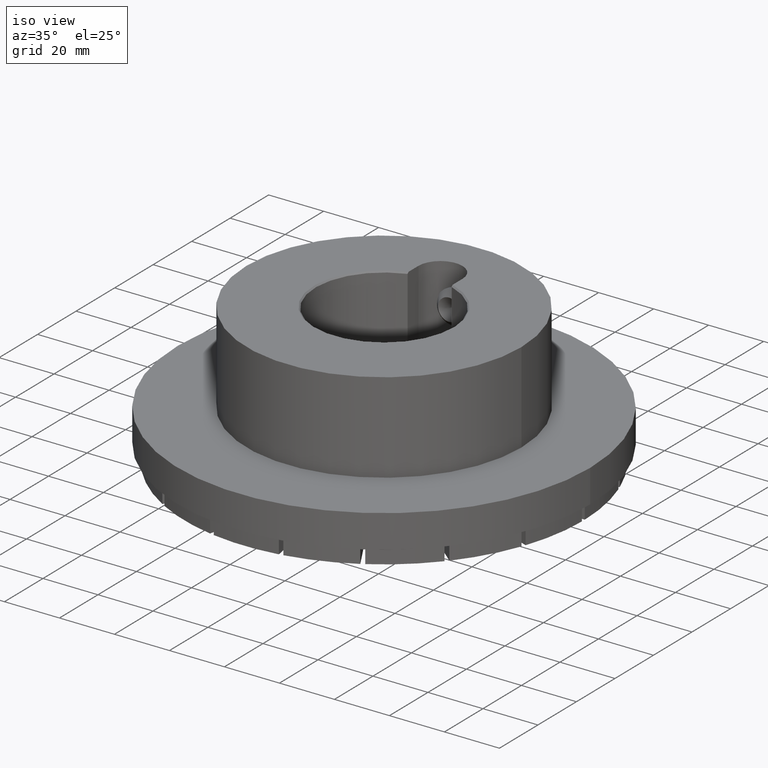
[diagram: clean part render]
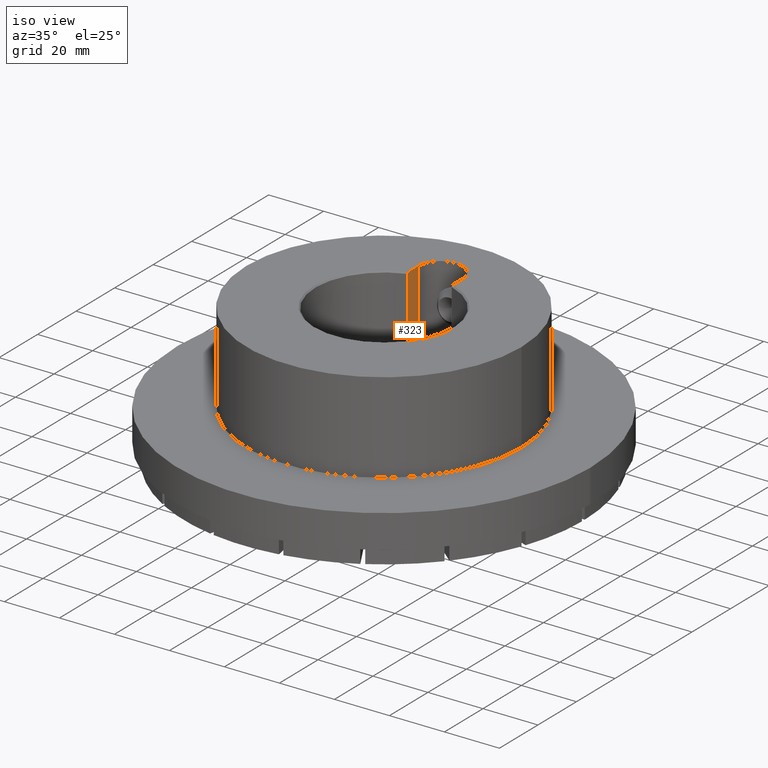
[diagram: same view with one face highlighted and labeled with its STEP entity id]
A machine part, iso view. The second image highlights one B-rep face of the part: STEP entity #323.
In plain terms, the highlighted planar face has unit normal (1, -0, 0).
Its self-contained STEP definition (entity closure, byte-faithful):
#323 = ADVANCED_FACE( '', ( #505 ), #506, .T. );
#505 = FACE_OUTER_BOUND( '', #777, .T. );
#506 = PLANE( '', #778 );
#777 = EDGE_LOOP( '', ( #1083, #1084, #1085, #1086, #1087 ) );
#778 = AXIS2_PLACEMENT_3D( '', #1088, #1089, #1090 );
#1083 = ORIENTED_EDGE( '', *, *, #1927, .T. );
#1084 = ORIENTED_EDGE( '', *, *, #1907, .T. );
#1085 = ORIENTED_EDGE( '', *, *, #1911, .T. );
#1086 = ORIENTED_EDGE( '', *, *, #1916, .F. );
#1087 = ORIENTED_EDGE( '', *, *, #1926, .F. );
#1088 = CARTESIAN_POINT( '', ( -8.00000000000000, 29.3000000000000, 51.0000100000000 ) );
#1089 = DIRECTION( '', ( 1.00000000000000, -6.12303176911189E-017, 0.000000000000000 ) );
#1090 = DIRECTION( '', ( 6.12303176911189E-017, 1.00000000000000, 0.000000000000000 ) );
#1907 = EDGE_CURVE( '', #2188, #2189, #2190, .T. );
#1911 = EDGE_CURVE( '', #2189, #2196, #2197, .T. );
#1916 = EDGE_CURVE( '', #2203, #2196, #2205, .T. );
#1926 = EDGE_CURVE( '', #2221, #2203, #2223, .T. );
#1927 = EDGE_CURVE( '', #2221, #2188, #2224, .F. );
#2188 = VERTEX_POINT( '', #2657 );
#2189 = VERTEX_POINT( '', #2658 );
#2190 = B_SPLINE_CURVE_WITH_KNOTS( '', 3, ( #2659, #2660, #2661, #2662 ), .UNSPECIFIED., .F., .F., ( 4, 4 ), ( 0.000000000000000, 0.000726566725024999 ), .UNSPECIFIED. );
#2196 = VERTEX_POINT( '', #2671 );
#2197 = LINE( '', #2672, #2673 );
#2203 = VERTEX_POINT( '', #2681 );
#2205 = LINE( '', #2683, #2684 );
#2221 = VERTEX_POINT( '', #2850 );
#2223 = LINE( '', #2852, #2853 );
#2224 = LINE( '', #2854, #2855 );
#2657 = CARTESIAN_POINT( '', ( -8.00000000000000, 24.2126000256065, 51.0000000000000 ) );
#2658 = CARTESIAN_POINT( '', ( -8.00000000000000, 23.6854385646540, 50.5000000000000 ) );
#2659 = CARTESIAN_POINT( '', ( -8.00000000000000, 24.2126000256065, 51.0000000000000 ) );
#2660 = CARTESIAN_POINT( '', ( -8.00000000000000, 24.0369705641103, 50.8332374155325 ) );
#2661 = CARTESIAN_POINT( '', ( -8.00000000000000, 23.8612519408105, 50.6665686767919 ) );
#2662 = CARTESIAN_POINT( '', ( -8.00000000000000, 23.6854385646540, 50.5000000000000 ) );
#2671 = CARTESIAN_POINT( '', ( -8.00000000000000, 23.6854385646540, 21.0000000000000 ) );
#2672 = CARTESIAN_POINT( '', ( -8.00000000000000, 23.6854385646540, 51.0000100000000 ) );
#2673 = VECTOR( '', #3506, 1000.00000000000 );
#2681 = CARTESIAN_POINT( '', ( -8.00000000000000, 29.3000000000000, 21.0000000000000 ) );
#2683 = CARTESIAN_POINT( '', ( -8.00000000000000, 29.3000000000000, 21.0000000000000 ) );
#2684 = VECTOR( '', #3515, 1000.00000000000 );
#2850 = CARTESIAN_POINT( '', ( -8.00000000000000, 29.3000000000000, 51.0000000000000 ) );
#2852 = CARTESIAN_POINT( '', ( -8.00000000000000, 29.3000000000000, 51.0000100000000 ) );
#2853 = VECTOR( '', #3533, 1000.00000000000 );
#2854 = CARTESIAN_POINT( '', ( -8.00000000000000, 29.3000000000000, 51.0000000000000 ) );
#2855 = VECTOR( '', #3534, 1000.00000000000 );
#3506 = DIRECTION( '', ( -0.000000000000000, -0.000000000000000, -1.00000000000000 ) );
#3515 = DIRECTION( '', ( -6.12303176911189E-017, -1.00000000000000, 0.000000000000000 ) );
#3533 = DIRECTION( '', ( -0.000000000000000, -0.000000000000000, -1.00000000000000 ) );
#3534 = DIRECTION( '', ( 6.12303176911189E-017, 1.00000000000000, 0.000000000000000 ) );